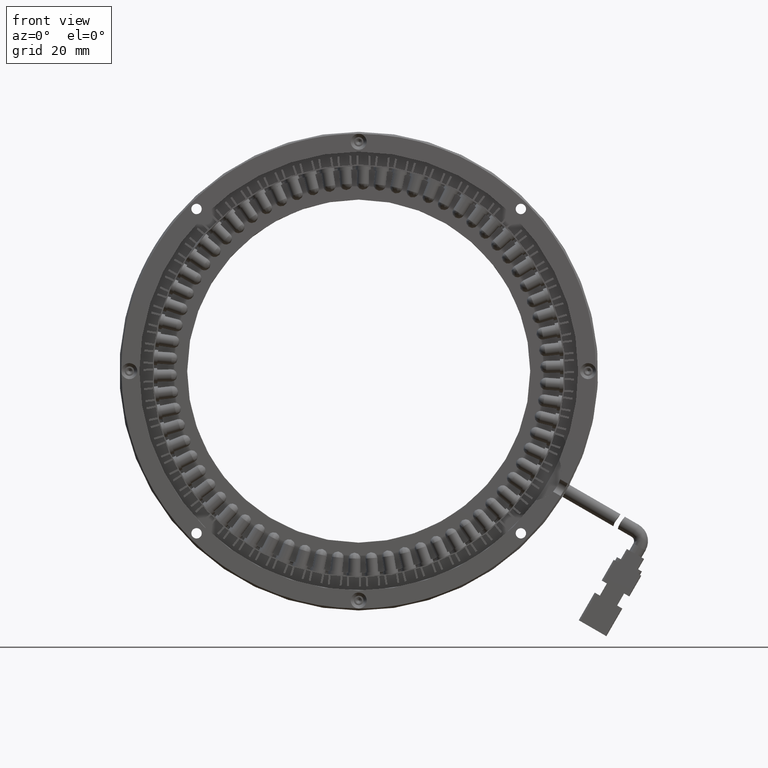
[diagram: clean part render]
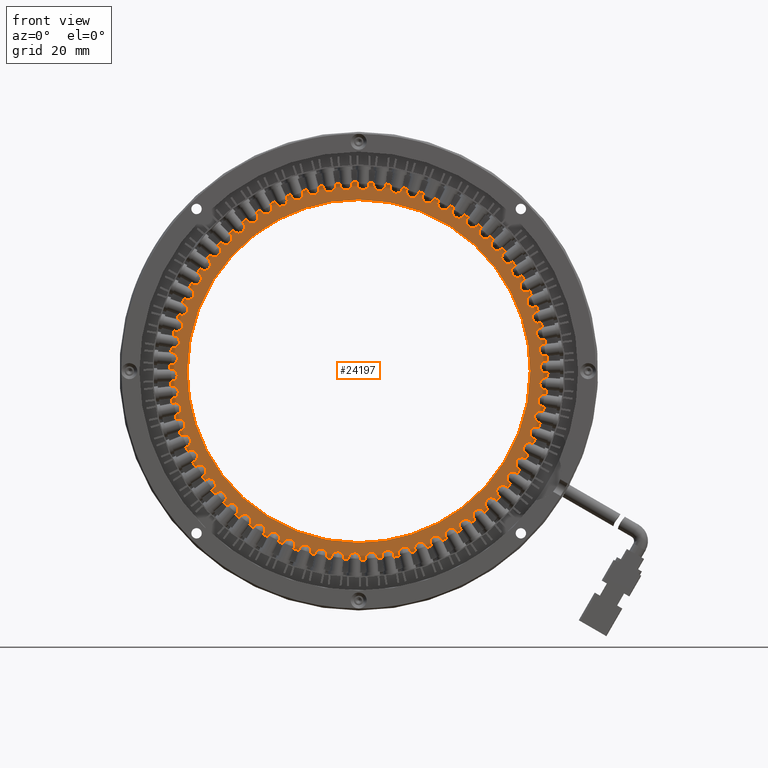
[diagram: same view with one face highlighted and labeled with its STEP entity id]
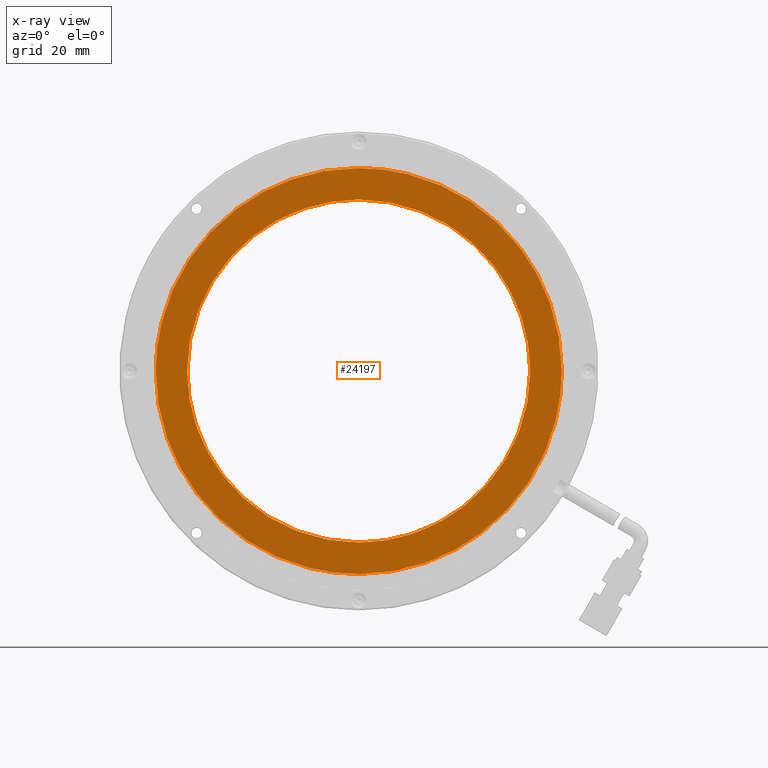
[diagram: x-ray of the same camera — body ghosted, the highlighted face saturated]
A machine part, front view. The second image highlights one B-rep face of the part: STEP entity #24197.
The next image is the same camera in x-ray: the body ghosted, the highlighted face saturated — about 0% of this face is hidden behind the body in this view.
In plain terms, the highlighted planar face has unit normal (0, -1, 0).
Its self-contained STEP definition (entity closure, byte-faithful):
#459 = VERTEX_POINT ( 'NONE', #45537 ) ;
#1240 = CARTESIAN_POINT ( 'NONE',  ( 104.7572948735835800, 26.01889671361999500, 16.39896628660023800 ) ) ;
#1402 = CARTESIAN_POINT ( 'NONE',  ( 78.00437890828240500, 26.01889671362000600, 37.31761820486229200 ) ) ;
#1453 = CARTESIAN_POINT ( 'NONE',  ( 59.78647407798170100, 26.01889671362000200, 50.81830086253895500 ) ) ;
#1699 = CARTESIAN_POINT ( 'NONE',  ( 33.89803358049925900, 26.01889671362000200, -45.74981039445030700 ) ) ;
#1730 = CARTESIAN_POINT ( 'NONE',  ( 15.65178161098530100, 26.01889671361999500, -13.85381135864025000 ) ) ;
#2698 = CARTESIAN_POINT ( 'NONE',  ( 43.25678297685089300, 26.01889671362000200, 49.27168707806946900 ) ) ;
#2880 = CARTESIAN_POINT ( 'NONE',  ( 5.556277853956411100, 26.01889671362000200, 3.333375449477817800 ) ) ;
#3225 = CARTESIAN_POINT ( 'NONE',  ( 22.26743689653314100, 26.01889671362000900, 26.23085262830318200 ) ) ;
#3767 = CARTESIAN_POINT ( 'NONE',  ( 90.64505332260090100, 26.01889671361999800, -26.23085262826120400 ) ) ;
#3836 = CARTESIAN_POINT ( 'NONE',  ( 59.78663714981579600, 26.01889671362000200, -50.81825189660506200 ) ) ;
#4048 = CARTESIAN_POINT ( 'NONE',  ( 104.7573839146137000, 26.01889671361999800, -16.39893100923851000 ) ) ;
#6234 = CARTESIAN_POINT ( 'NONE',  ( 100.6299241322864900, 26.01889671361999500, 25.50693210021964300 ) ) ;
#6404 = CARTESIAN_POINT ( 'NONE',  ( 84.87064371179610600, 26.01889671362000600, 32.39673827351570200 ) ) ;
#6453 = CARTESIAN_POINT ( 'NONE',  ( 56.45624510953157900, 26.01889671361549400, 50.90000000000001300 ) ) ;
#6495 = CARTESIAN_POINT ( 'NONE',  ( 5.556245109549984700, 26.01889671361653500, -1.577178132838423300E-011 ) ) ;
#6527 = CARTESIAN_POINT ( 'NONE',  ( 56.45624510954046100, 26.01889671361550400, -43.00000000000000000 ) ) ;
#6717 = CARTESIAN_POINT ( 'NONE',  ( 43.25686177741030700, 26.01889671362000600, -49.27163264218659600 ) ) ;
#6735 = CARTESIAN_POINT ( 'NONE',  ( 13.73308341618790600, 26.01889671362000600, -5.627058333948421700 ) ) ;
#7401 = ORIENTED_EDGE ( 'NONE', *, *, #53141, .T. ) ;
#7724 = CARTESIAN_POINT ( 'NONE',  ( 33.89797764199423100, 26.01889671361999800, 45.74985810877593900 ) ) ;
#7943 = EDGE_CURVE ( 'NONE', #10334, #27966, #37938, .T. ) ;
#8297 = CARTESIAN_POINT ( 'NONE',  ( 28.04175074556664500, 26.01889671362000900, 32.39673975378454400 ) ) ;
#8309 = FACE_BOUND ( 'NONE', #29566, .T. ) ;
#8630 = CARTESIAN_POINT ( 'NONE',  ( 99.45624510954998200, 26.01889671361625400, -1.332315192935266000E-011 ) ) ;
#8850 = CARTESIAN_POINT ( 'NONE',  ( 84.87071584079183100, 26.01889671361999500, -32.39676338710393100 ) ) ;
#8869 = AXIS2_PLACEMENT_3D ( 'NONE', #59970, #15614, #50183 ) ;
#8916 = CARTESIAN_POINT ( 'NONE',  ( 64.75166012903498800, 26.01889671362000600, -50.24711261978037400 ) ) ;
#9138 = CARTESIAN_POINT ( 'NONE',  ( 107.0285638075793600, 26.01889671361999800, -6.660745424951959300 ) ) ;
#9841 = B_SPLINE_CURVE_WITH_KNOTS ( 'NONE', 3,
 ( #28551, #33549, #3836, #38511, #8916, #43481, #13916, #48511, #18928, #53505, #23816, #58476, #28773, #63398, #33758, #4048, #38730, #9138, #43708, #14124 ),
 .UNSPECIFIED., .F., .F.,
 ( 4, 2, 2, 2, 2, 2, 2, 2, 2, 4 ),
 ( 0.0000000000000000000, 0.03125000000000009700, 0.06250000000000019400, 0.1250000000000001700, 0.1875000000000001400, 0.2500000000000001100, 0.3125000000000000600, 0.3750000000000000600, 0.4375000000000000000, 0.5000000000000000000 ),
 .UNSPECIFIED. ) ;
#10334 = VERTEX_POINT ( 'NONE', #37409 ) ;
#11251 = CARTESIAN_POINT ( 'NONE',  ( 94.80498367911548000, 26.01889671361999800, 33.63468081738428600 ) ) ;
#11422 = CARTESIAN_POINT ( 'NONE',  ( 90.64495911223930600, 26.01889671362000200, 26.23086985845879600 ) ) ;
#11516 = CARTESIAN_POINT ( 'NONE',  ( 7.184541814595717400, 26.01889671362000600, -13.19939738547114400 ) ) ;
#11546 = CARTESIAN_POINT ( 'NONE',  ( 42.60245881226100600, 26.01889671362000600, -40.80440299672390800 ) ) ;
#11730 = CARTESIAN_POINT ( 'NONE',  ( 49.80834589602344000, 26.01889671361999500, -50.49150431269315200 ) ) ;
#11764 = CARTESIAN_POINT ( 'NONE',  ( 13.45624510954999700, 26.01889671361625000, 4.419888705890230900E-012 ) ) ;
#12332 = EDGE_CURVE ( 'NONE', #33410, #26936, #59075, .T. ) ;
#12754 = CARTESIAN_POINT ( 'NONE',  ( 25.40607387572962500, 26.01889671362001300, 40.46988774954723300 ) ) ;
#13295 = CARTESIAN_POINT ( 'NONE',  ( 34.90804546772864800, 26.01889671362000600, 37.31765690789703900 ) ) ;
#13860 = CARTESIAN_POINT ( 'NONE',  ( 78.00444475152134800, 26.01889671362000600, -37.31765690779698700 ) ) ;
#13872 = ORIENTED_EDGE ( 'NONE', *, *, #48234, .T. ) ;
#13916 = CARTESIAN_POINT ( 'NONE',  ( 72.85515105705226800, 26.01889671361999800, -48.30107830074091200 ) ) ;
#14124 = CARTESIAN_POINT ( 'NONE',  ( 107.3562451095500000, 26.01889671361610100, 1.576519515532844700E-011 ) ) ;
#15614 = DIRECTION ( 'NONE',  ( 0.0000000000000000000, -1.000000000000000000, 0.0000000000000000000 ) ) ;
#16209 = CARTESIAN_POINT ( 'NONE',  ( 59.27251698613767400, 26.01889671362000200, 43.00000000000000000 ) ) ;
#16256 = CARTESIAN_POINT ( 'NONE',  ( 87.50632270927366100, 26.01889671362000200, 40.46986761312018600 ) ) ;
#16322 = CARTESIAN_POINT ( 'NONE',  ( 50.82916758457395900, 26.01889671361999800, -42.72308776801849500 ) ) ;
#16426 = CARTESIAN_POINT ( 'NONE',  ( 95.10542140686843000, 26.01889671362000900, 19.05696382502406600 ) ) ;
#16508 = CARTESIAN_POINT ( 'NONE',  ( 10.70635846368033000, 26.01889671361999800, -22.55820712775506800 ) ) ;
#16535 = CARTESIAN_POINT ( 'NONE',  ( 34.90811131116759500, 26.01889671362000600, -37.31761820507022500 ) ) ;
#16718 = CARTESIAN_POINT ( 'NONE',  ( 54.78902358514033500, 26.01889671362000600, -50.89999999999999900 ) ) ;
#17037 = VERTEX_POINT ( 'NONE', #25710 ) ;
#17519 = CARTESIAN_POINT ( 'NONE',  ( 56.45624510953157900, 26.01889671361549400, 50.90000000000001300 ) ) ;
#17736 = CARTESIAN_POINT ( 'NONE',  ( 18.10741077655059800, 26.01889671362000600, 33.63468229982655800 ) ) ;
#18029 = EDGE_CURVE ( 'NONE', #27966, #41286, #9841, .T. ) ;
#18290 = CARTESIAN_POINT ( 'NONE',  ( 42.60237090700771700, 26.01889671362000900, 40.80444101095146400 ) ) ;
#18451 = ORIENTED_EDGE ( 'NONE', *, *, #57709, .T. ) ;
#18850 = CARTESIAN_POINT ( 'NONE',  ( 70.31008734561673600, 26.01889671361999500, -40.80445070827566700 ) ) ;
#18928 = CARTESIAN_POINT ( 'NONE',  ( 81.96312359689166300, 26.01889671361999800, -44.17371878304636100 ) ) ;
#21234 = CARTESIAN_POINT ( 'NONE',  ( 79.01442467049565700, 26.01889671362000200, 45.74982009219699100 ) ) ;
#21401 = CARTESIAN_POINT ( 'NONE',  ( 98.08061753096865200, 26.01889671361999500, 11.15070935917603200 ) ) ;
#21482 = CARTESIAN_POINT ( 'NONE',  ( 15.98631760027544300, 26.01889671362000900, -31.05011762167275400 ) ) ;
#21513 = CARTESIAN_POINT ( 'NONE',  ( 28.04184650688262800, 26.01889671361999800, -32.39673827308469400 ) ) ;
#22644 = CARTESIAN_POINT ( 'NONE',  ( 12.28247187420509200, 26.01889671362000600, 25.50691487144799700 ) ) ;
#23002 = CARTESIAN_POINT ( 'NONE',  ( 13.73316386156601600, 26.01889671362000600, 5.627110305432123200 ) ) ;
#23204 = CARTESIAN_POINT ( 'NONE',  ( 50.82912075118920100, 26.01889671362000600, 42.72315189789412000 ) ) ;
#23534 = CARTESIAN_POINT ( 'NONE',  ( 99.17932635761260900, 26.01889671362000200, -5.627110305215330400 ) ) ;
#23756 = CARTESIAN_POINT ( 'NONE',  ( 62.08336946793011200, 26.01889671362000200, -42.72315189787240500 ) ) ;
#23816 = CARTESIAN_POINT ( 'NONE',  ( 90.09088110092170600, 26.01889671362000600, -38.34878802545281900 ) ) ;
#24034 = CARTESIAN_POINT ( 'NONE',  ( 56.45624510955031600, 26.01889671361549400, -50.89999999999999900 ) ) ;
#24197 = ADVANCED_FACE ( 'NONE', ( #8309, #36168 ), #25292, .T. ) ;
#25292 = PLANE ( 'NONE',  #8869 ) ;
#25710 = CARTESIAN_POINT ( 'NONE',  ( 56.45624510953157900, 26.01889671361549400, 50.90000000000001300 ) ) ;
#25952 = CARTESIAN_POINT ( 'NONE',  ( 107.3562778539564100, 26.01889671362000200, 3.333375449229505800 ) ) ;
#25971 = ORIENTED_EDGE ( 'NONE', *, *, #7943, .T. ) ;
#26112 = CARTESIAN_POINT ( 'NONE',  ( 67.60696724505650900, 26.01889671362000900, 41.62443664994075500 ) ) ;
#26163 = CARTESIAN_POINT ( 'NONE',  ( 69.65566122018739700, 26.01889671362000200, 49.27162612173183500 ) ) ;
#26326 = CARTESIAN_POINT ( 'NONE',  ( 99.45621236649645900, 26.01889671361999800, 2.815905964830909700 ) ) ;
#26406 = CARTESIAN_POINT ( 'NONE',  ( 22.82151335479713700, 26.01889671362000200, -38.34878950779438600 ) ) ;
#26437 = CARTESIAN_POINT ( 'NONE',  ( 22.26751535937372900, 26.01889671361999800, -26.23084039778298400 ) ) ;
#26936 = VERTEX_POINT ( 'NONE', #57332 ) ;
#27415 = CARTESIAN_POINT ( 'NONE',  ( 53.12585306926864300, 26.01889671362000200, 50.81825189661281400 ) ) ;
#27628 = CARTESIAN_POINT ( 'NONE',  ( 8.155106304517726600, 26.01889671362000600, 16.39893100922191500 ) ) ;
#27966 = VERTEX_POINT ( 'NONE', #24034 ) ;
#27967 = CARTESIAN_POINT ( 'NONE',  ( 15.65187064943287100, 26.01889671361999800, 13.85384663670364500 ) ) ;
#28162 = CARTESIAN_POINT ( 'NONE',  ( 56.45624510954951300, 26.01889671361550400, 43.00000000000000000 ) ) ;
#28491 = CARTESIAN_POINT ( 'NONE',  ( 97.26061956957231300, 26.01889671362000200, -13.85384663698271800 ) ) ;
#28551 = CARTESIAN_POINT ( 'NONE',  ( 56.45624510955031600, 26.01889671361549400, -50.89999999999999900 ) ) ;
#28708 = CARTESIAN_POINT ( 'NONE',  ( 56.45624510954046100, 26.01889671361550400, -43.00000000000000000 ) ) ;
#28773 = CARTESIAN_POINT ( 'NONE',  ( 96.92607840675792400, 26.01889671362000600, -31.05013484968296600 ) ) ;
#29566 = EDGE_LOOP ( 'NONE', ( #7401, #13872, #40125, #32229 ) ) ;
#30829 = ORIENTED_EDGE ( 'NONE', *, *, #18029, .T. ) ;
#30901 = CARTESIAN_POINT ( 'NONE',  ( 105.7279484043634900, 26.01889671362000200, 13.19939738615780200 ) ) ;
#31051 = CARTESIAN_POINT ( 'NONE',  ( 75.51323399540078200, 26.01889671362000900, 38.64923679934410900 ) ) ;
#31104 = CARTESIAN_POINT ( 'NONE',  ( 63.10416102662630100, 26.01889671361999500, 50.49150431269473000 ) ) ;
#31359 = CARTESIAN_POINT ( 'NONE',  ( 30.94927298807838800, 26.01889671361999500, -44.17373891941289800 ) ) ;
#31386 = CARTESIAN_POINT ( 'NONE',  ( 17.80706881214146600, 26.01889671362000200, -19.05696382475130700 ) ) ;
#31561 = B_SPLINE_CURVE_WITH_KNOTS ( 'NONE', 3,
 ( #50632, #25952, #60591, #30901, #1240, #35881, #6234, #40836, #11251, #45888, #16256, #50845, #21234, #55808, #26163, #60821, #31104, #1453, #36096, #6453 ),
 .UNSPECIFIED., .F., .F.,
 ( 4, 2, 2, 2, 2, 2, 2, 2, 2, 4 ),
 ( 0.5000000000000000000, 0.5625000000000000000, 0.6250000000000000000, 0.6874999999999998900, 0.7499999999999998900, 0.8124999999999998900, 0.8749999999999997800, 0.9374999999999997800, 0.9687499999999998900, 1.000000000000000000 ),
 .UNSPECIFIED. ) ;
#32161 = CARTESIAN_POINT ( 'NONE',  ( 54.78937442630855500, 26.01889671362000600, 50.90000000000000600 ) ) ;
#32229 = ORIENTED_EDGE ( 'NONE', *, *, #62777, .T. ) ;
#32356 = CARTESIAN_POINT ( 'NONE',  ( 99.45624510954998200, 26.01889671361625400, -1.332315192935266000E-011 ) ) ;
#32382 = CARTESIAN_POINT ( 'NONE',  ( 48.16083008993816600, 26.01889671362000900, 50.24711261974596300 ) ) ;
#32519 = CARTESIAN_POINT ( 'NONE',  ( 13.45621236649649400, 26.01889671362000600, 2.815905964446381300 ) ) ;
#32592 = CARTESIAN_POINT ( 'NONE',  ( 5.883926411644226000, 26.01889671362000900, 6.660745425667093900 ) ) ;
#32941 = CARTESIAN_POINT ( 'NONE',  ( 19.13866666455473400, 26.01889671362000200, 21.54818741139273200 ) ) ;
#33410 = VERTEX_POINT ( 'NONE', #50814 ) ;
#33482 = CARTESIAN_POINT ( 'NONE',  ( 93.77382355450130500, 26.01889671362000600, -21.54818741144948600 ) ) ;
#33549 = CARTESIAN_POINT ( 'NONE',  ( 58.12311579269363900, 26.01889671362000900, -50.90000000000001300 ) ) ;
#33695 = B_SPLINE_CURVE_WITH_KNOTS ( 'NONE', 3,
 ( #50797, #16209, #55762, #26112, #60772, #31051, #1402, #36049, #6404, #41001, #11422, #46048, #16426, #51006, #21401, #55973, #26326, #60980 ),
 .UNSPECIFIED., .F., .F.,
 ( 4, 2, 2, 2, 2, 2, 2, 2, 4 ),
 ( 0.0000000000000000000, 0.06250000000000009700, 0.1250000000000000300, 0.1874999999999999700, 0.2499999999999999400, 0.3124999999999999400, 0.3749999999999998900, 0.4374999999999999400, 0.5000000000000000000 ),
 .UNSPECIFIED. ) ;
#33758 = CARTESIAN_POINT ( 'NONE',  ( 102.2060427141463200, 26.01889671362000200, -22.55824240550097300 ) ) ;
#35881 = CARTESIAN_POINT ( 'NONE',  ( 102.2061317551522800, 26.01889671362000600, 22.55820712819740900 ) ) ;
#35944 = CARTESIAN_POINT ( 'NONE',  ( 53.63997323333657600, 26.01889671362000200, -42.99999999999998600 ) ) ;
#36049 = CARTESIAN_POINT ( 'NONE',  ( 82.68715135052092100, 26.01889671361998800, 34.18876845314482400 ) ) ;
#36096 = CARTESIAN_POINT ( 'NONE',  ( 58.12344993039001700, 26.01889671361999800, 50.89999999999998400 ) ) ;
#36116 = B_SPLINE_CURVE_WITH_KNOTS ( 'NONE', 3,
 ( #8630, #48238, #23534, #58186, #28491, #63119, #33482, #3767, #38444, #8850, #43411, #13860, #48445, #18850, #53437, #23756, #58413, #28708 ),
 .UNSPECIFIED., .F., .F.,
 ( 4, 2, 2, 2, 2, 2, 2, 2, 4 ),
 ( 0.5000000000000000000, 0.5625000000000000000, 0.6250000000000000000, 0.6875000000000000000, 0.7500000000000000000, 0.8125000000000001100, 0.8750000000000001100, 0.9375000000000002200, 1.000000000000000000 ),
 .UNSPECIFIED. ) ;
#36168 = FACE_OUTER_BOUND ( 'NONE', #51254, .T. ) ;
#36336 = CARTESIAN_POINT ( 'NONE',  ( 40.05728322385651600, 26.01889671362000600, -48.30112601520776400 ) ) ;
#36367 = CARTESIAN_POINT ( 'NONE',  ( 14.83187268823273900, 26.01889671362000200, -11.15070935943101700 ) ) ;
#37314 = CARTESIAN_POINT ( 'NONE',  ( 40.05733916230319400, 26.01889671362000200, 48.30107830085795900 ) ) ;
#37409 = CARTESIAN_POINT ( 'NONE',  ( 5.556245109549984700, 26.01889671361653500, -1.577178132838423300E-011 ) ) ;
#37536 = CARTESIAN_POINT ( 'NONE',  ( 5.556245109549984700, 26.01889671361653500, -1.577178132838423300E-011 ) ) ;
#37890 = CARTESIAN_POINT ( 'NONE',  ( 24.05955629149968900, 26.01889671361999800, 28.41444342826799400 ) ) ;
#37938 = B_SPLINE_CURVE_WITH_KNOTS ( 'NONE', 3,
 ( #6495, #50873, #41083, #11516, #46137, #16508, #51094, #21482, #56056, #26406, #61061, #31359, #1699, #36336, #6717, #41292, #11730, #46351, #16718, #51319 ),
 .UNSPECIFIED., .F., .F.,
 ( 4, 2, 2, 2, 2, 2, 2, 2, 2, 4 ),
 ( 0.5000000000000000000, 0.5625000000000000000, 0.6250000000000000000, 0.6875000000000000000, 0.7500000000000000000, 0.8125000000000000000, 0.8750000000000000000, 0.9374999999999998900, 0.9687500000000000000, 1.000000000000000000 ),
 .UNSPECIFIED. ) ;
#38444 = CARTESIAN_POINT ( 'NONE',  ( 88.85295756032925900, 26.01889671362000600, -28.41441979496113000 ) ) ;
#38511 = CARTESIAN_POINT ( 'NONE',  ( 63.10399795485499700, 26.01889671362000900, -50.49155327862247600 ) ) ;
#38730 = CARTESIAN_POINT ( 'NONE',  ( 105.7278679565754200, 26.01889671362000900, -13.19944935626024800 ) ) ;
#39075 = ORIENTED_EDGE ( 'NONE', *, *, #45605, .T. ) ;
#39238 = B_SPLINE_CURVE_WITH_KNOTS ( 'NONE', 3,
 ( #17519, #32161, #27415, #62013, #32382, #2698, #37314, #7724, #42316, #12754, #47338, #17736, #52325, #22644, #57260, #27628, #62226, #32592, #2880, #37536 ),
 .UNSPECIFIED., .F., .F.,
 ( 4, 2, 2, 2, 2, 2, 2, 2, 2, 4 ),
 ( 0.0000000000000000000, 0.03124999999999995100, 0.06249999999999990300, 0.1249999999999999200, 0.1874999999999999200, 0.2499999999999999400, 0.3124999999999999400, 0.3749999999999999400, 0.4375000000000000000, 0.5000000000000000000 ),
 .UNSPECIFIED. ) ;
#39805 = CARTESIAN_POINT ( 'NONE',  ( 107.3562451095500000, 26.01889671361610100, 1.576519515532844700E-011 ) ) ;
#40125 = ORIENTED_EDGE ( 'NONE', *, *, #12332, .T. ) ;
#40374 = B_SPLINE_CURVE_WITH_KNOTS ( 'NONE', 3,
 ( #42660, #32519, #23002, #57623, #27967, #62571, #32941, #3225, #37890, #8297, #42873, #13295, #47908, #18290, #52872, #23204, #57835, #28162 ),
 .UNSPECIFIED., .F., .F.,
 ( 4, 2, 2, 2, 2, 2, 2, 2, 4 ),
 ( 0.5000000000000000000, 0.5625000000000000000, 0.6250000000000000000, 0.6875000000000000000, 0.7500000000000000000, 0.8125000000000000000, 0.8750000000000000000, 0.9375000000000000000, 1.000000000000000000 ),
 .UNSPECIFIED. ) ;
#40836 = CARTESIAN_POINT ( 'NONE',  ( 96.92617261919285500, 26.01889671361999500, 31.05011762120528800 ) ) ;
#41001 = CARTESIAN_POINT ( 'NONE',  ( 88.85302968936267100, 26.01889671361999800, 28.41444490851167600 ) ) ;
#41083 = CARTESIAN_POINT ( 'NONE',  ( 5.884006859461301500, 26.01889671362000600, -6.660797395800342400 ) ) ;
#41107 = CARTESIAN_POINT ( 'NONE',  ( 45.30555494113792700, 26.01889671362000600, -41.62444634665909100 ) ) ;
#41286 = VERTEX_POINT ( 'NONE', #39805 ) ;
#41292 = CARTESIAN_POINT ( 'NONE',  ( 48.16079068970483200, 26.01889671362000200, -50.24713983769660800 ) ) ;
#41321 = CARTESIAN_POINT ( 'NONE',  ( 13.45627785260351100, 26.01889671362000900, -2.815905964437537300 ) ) ;
#42316 = CARTESIAN_POINT ( 'NONE',  ( 30.94936662194315600, 26.01889671362000200, 44.17371878283071100 ) ) ;
#42660 = CARTESIAN_POINT ( 'NONE',  ( 13.45624510954999700, 26.01889671361625000, 4.419888705890230900E-012 ) ) ;
#42873 = CARTESIAN_POINT ( 'NONE',  ( 30.22540471169753600, 26.01889671362000200, 34.18872975012985200 ) ) ;
#43411 = CARTESIAN_POINT ( 'NONE',  ( 82.68708550723768300, 26.01889671362000200, -34.18872975023978000 ) ) ;
#43481 = CARTESIAN_POINT ( 'NONE',  ( 69.65570724247558600, 26.01889671361999500, -49.27168707800603200 ) ) ;
#43708 = CARTESIAN_POINT ( 'NONE',  ( 107.3562123651436300, 26.01889671362000900, -3.333375449197983500 ) ) ;
#45537 = CARTESIAN_POINT ( 'NONE',  ( 56.45624510954951300, 26.01889671361550400, 43.00000000000000000 ) ) ;
#45605 = EDGE_CURVE ( 'NONE', #17037, #10334, #39238, .T. ) ;
#45888 = CARTESIAN_POINT ( 'NONE',  ( 90.09097686474903800, 26.01889671362000900, 38.34878950743226500 ) ) ;
#46048 = CARTESIAN_POINT ( 'NONE',  ( 93.77391776489253100, 26.01889671361999800, 21.54817018120761700 ) ) ;
#46137 = CARTESIAN_POINT ( 'NONE',  ( 8.155195345781725900, 26.01889671361999800, -16.39896628703783300 ) ) ;
#46168 = CARTESIAN_POINT ( 'NONE',  ( 37.39925622343918800, 26.01889671362001300, -38.64923679924590500 ) ) ;
#46351 = CARTESIAN_POINT ( 'NONE',  ( 53.12599943754887000, 26.01889671361999800, -50.81830086253863500 ) ) ;
#47338 = CARTESIAN_POINT ( 'NONE',  ( 22.82160911773282000, 26.01889671362000600, 38.34878802493799600 ) ) ;
#47908 = CARTESIAN_POINT ( 'NONE',  ( 37.39934412870887600, 26.01889671361999500, 38.64919878502512100 ) ) ;
#48234 = EDGE_CURVE ( 'NONE', #53283, #33410, #36116, .T. ) ;
#48238 = CARTESIAN_POINT ( 'NONE',  ( 99.45627785260347800, 26.01889671362000200, -2.815905964857552800 ) ) ;
#48445 = CARTESIAN_POINT ( 'NONE',  ( 75.51317805685018000, 26.01889671362000200, -38.64918908770774000 ) ) ;
#48511 = CARTESIAN_POINT ( 'NONE',  ( 79.01451257683575600, 26.01889671361999100, -45.74985810889898400 ) ) ;
#50183 = DIRECTION ( 'NONE',  ( 0.0000000000000000000, 0.0000000000000000000, 1.000000000000000000 ) ) ;
#50632 = CARTESIAN_POINT ( 'NONE',  ( 107.3562451095500000, 26.01889671361610100, 1.576519515532844700E-011 ) ) ;
#50797 = CARTESIAN_POINT ( 'NONE',  ( 56.45624510954951300, 26.01889671361550400, 43.00000000000000000 ) ) ;
#50814 = CARTESIAN_POINT ( 'NONE',  ( 56.45624510954046100, 26.01889671361550400, -43.00000000000000000 ) ) ;
#50845 = CARTESIAN_POINT ( 'NONE',  ( 81.96321723119017100, 26.01889671362000200, 44.17373891930009200 ) ) ;
#50873 = CARTESIAN_POINT ( 'NONE',  ( 5.556212365143556700, 26.01889671362000600, -3.333375449509370800 ) ) ;
#51006 = CARTESIAN_POINT ( 'NONE',  ( 97.26070860821154400, 26.01889671361999500, 13.85381135835107900 ) ) ;
#51094 = CARTESIAN_POINT ( 'NONE',  ( 12.28256608644078600, 26.01889671362000200, -25.50693209974572500 ) ) ;
#51121 = CARTESIAN_POINT ( 'NONE',  ( 30.22533886824385600, 26.01889671362000600, -34.18876845294680300 ) ) ;
#51254 = EDGE_LOOP ( 'NONE', ( #39075, #25971, #30829, #18451 ) ) ;
#51319 = CARTESIAN_POINT ( 'NONE',  ( 56.45624510955031600, 26.01889671361549400, -50.89999999999999900 ) ) ;
#52325 = CARTESIAN_POINT ( 'NONE',  ( 15.98641181247606200, 26.01889671361999800, 31.05013484991799500 ) ) ;
#52872 = CARTESIAN_POINT ( 'NONE',  ( 45.30560177454011500, 26.01889671362000200, 41.62438221678694800 ) ) ;
#53141 = EDGE_CURVE ( 'NONE', #459, #53283, #33695, .T. ) ;
#53283 = VERTEX_POINT ( 'NONE', #32356 ) ;
#53437 = CARTESIAN_POINT ( 'NONE',  ( 67.60688844452317900, 26.01889671362000200, -41.62438221681211600 ) ) ;
#53505 = CARTESIAN_POINT ( 'NONE',  ( 87.50641634362459300, 26.01889671361999100, -40.46988774933885900 ) ) ;
#55762 = CARTESIAN_POINT ( 'NONE',  ( 62.08329066744904200, 26.01889671362000200, 42.72309746473334300 ) ) ;
#55808 = CARTESIAN_POINT ( 'NONE',  ( 72.85523896333413100, 26.01889671362000200, 48.30111631746704900 ) ) ;
#55973 = CARTESIAN_POINT ( 'NONE',  ( 99.17940680281405700, 26.01889671361999500, 5.627058334185929500 ) ) ;
#56056 = CARTESIAN_POINT ( 'NONE',  ( 18.10750653953090300, 26.01889671361999800, -33.63468081701476100 ) ) ;
#56081 = CARTESIAN_POINT ( 'NONE',  ( 24.05946053017114000, 26.01889671362000600, -28.41444490895526400 ) ) ;
#57260 = CARTESIAN_POINT ( 'NONE',  ( 10.70644750492018300, 26.01889671362000200, 22.55824240551265100 ) ) ;
#57332 = CARTESIAN_POINT ( 'NONE',  ( 13.45624510954999700, 26.01889671361625000, 4.419888705890230900E-012 ) ) ;
#57623 = CARTESIAN_POINT ( 'NONE',  ( 14.83179224285809600, 26.01889671362000600, 11.15065738796471500 ) ) ;
#57709 = EDGE_CURVE ( 'NONE', #41286, #17037, #31561, .T. ) ;
#57835 = CARTESIAN_POINT ( 'NONE',  ( 53.63927155226689100, 26.01889671362000200, 43.00000000000000000 ) ) ;
#58186 = CARTESIAN_POINT ( 'NONE',  ( 98.08069797615974000, 26.01889671362000200, -11.15065738819889400 ) ) ;
#58413 = CARTESIAN_POINT ( 'NONE',  ( 59.27321866703430700, 26.01889671362000600, -43.00000000000000000 ) ) ;
#58476 = CARTESIAN_POINT ( 'NONE',  ( 94.80507944298742000, 26.01889671362000200, -33.63468229931913100 ) ) ;
#59075 = B_SPLINE_CURVE_WITH_KNOTS ( 'NONE', 3,
 ( #6527, #35944, #16322, #41107, #11546, #46168, #16535, #51121, #21513, #56081, #26437, #61086, #31386, #1730, #36367, #6735, #41321, #11764 ),
 .UNSPECIFIED., .F., .F.,
 ( 4, 2, 2, 2, 2, 2, 2, 2, 4 ),
 ( 0.0000000000000000000, 0.06250000000000004200, 0.1250000000000000800, 0.1875000000000001100, 0.2500000000000001100, 0.3125000000000001100, 0.3750000000000000600, 0.4375000000000000600, 0.5000000000000000000 ),
 .UNSPECIFIED. ) ;
#59970 = CARTESIAN_POINT ( 'NONE',  ( 109.3922158557999900, 26.01889671362000200, -52.93600000000001400 ) ) ;
#60591 = CARTESIAN_POINT ( 'NONE',  ( 107.0284833597789000, 26.01889671362000200, 6.660797395116241600 ) ) ;
#60772 = CARTESIAN_POINT ( 'NONE',  ( 70.31003140711538900, 26.01889671362000200, 40.80440299661887600 ) ) ;
#60821 = CARTESIAN_POINT ( 'NONE',  ( 64.75168314013268400, 26.01889671361999500, 50.24714309792668800 ) ) ;
#60980 = CARTESIAN_POINT ( 'NONE',  ( 99.45624510954998200, 26.01889671361625400, -1.332315192935266000E-011 ) ) ;
#61061 = CARTESIAN_POINT ( 'NONE',  ( 25.40616750964684900, 26.01889671362000600, -40.46986761300009800 ) ) ;
#61086 = CARTESIAN_POINT ( 'NONE',  ( 19.13858820170432700, 26.01889671361999800, -21.54819964189822900 ) ) ;
#62013 = CARTESIAN_POINT ( 'NONE',  ( 49.80849226424086900, 26.01889671362000900, 50.49155327861277700 ) ) ;
#62226 = CARTESIAN_POINT ( 'NONE',  ( 7.184622262400468500, 26.01889671361999800, 13.19944935554253000 ) ) ;
#62571 = CARTESIAN_POINT ( 'NONE',  ( 17.80697977370068900, 26.01889671361999800, 19.05692854670430200 ) ) ;
#62777 = EDGE_CURVE ( 'NONE', #26936, #459, #40374, .T. ) ;
#63119 = CARTESIAN_POINT ( 'NONE',  ( 95.10551044548725500, 26.01889671361999800, -19.05692854644166800 ) ) ;
#63398 = CARTESIAN_POINT ( 'NONE',  ( 100.6300183447565100, 26.01889671361999500, -25.50691487168962700 ) ) ;